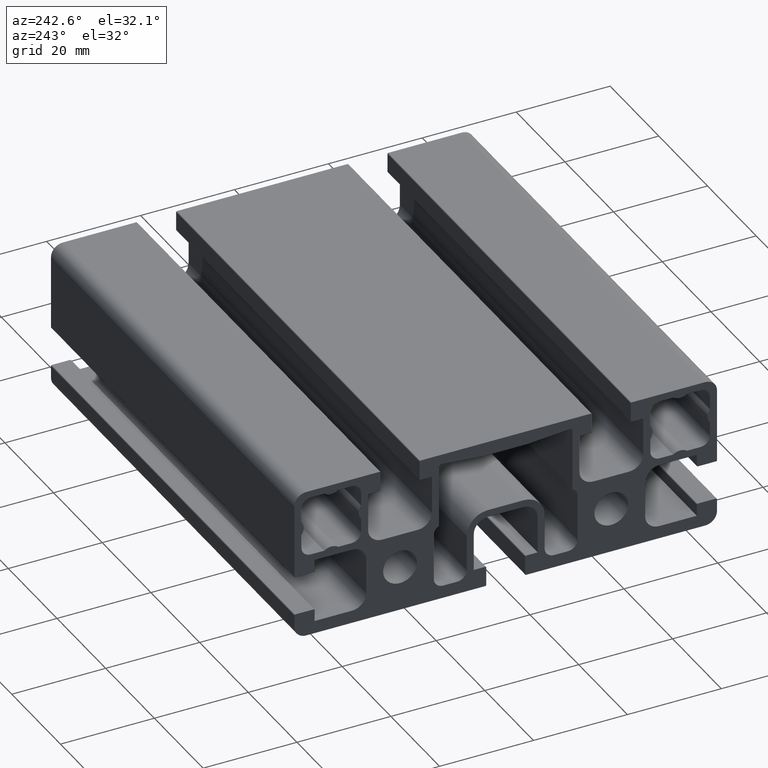
[diagram: clean part render]
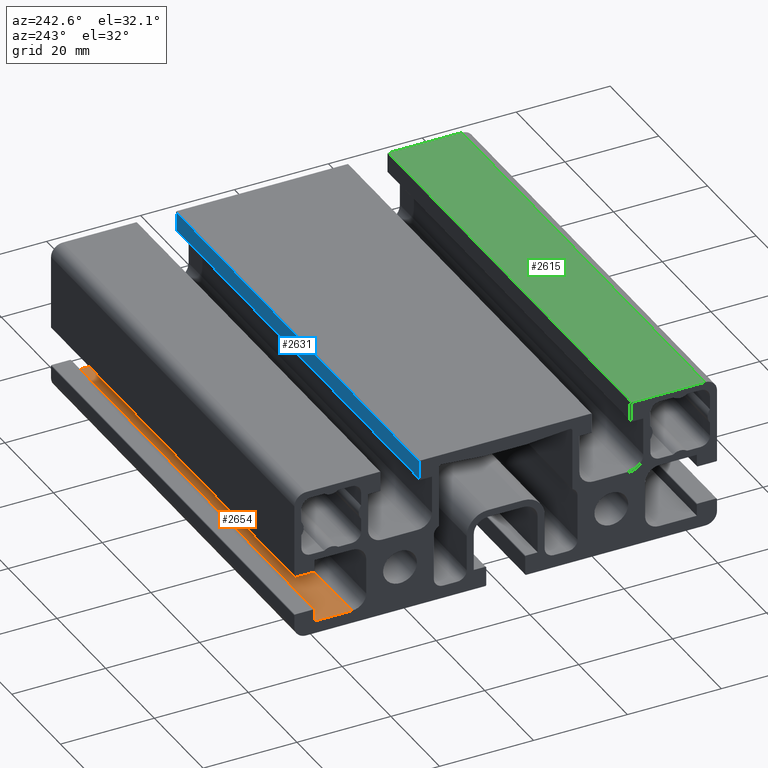
[diagram: same view with three faces highlighted in distinct colors, each labeled with its STEP entity id]
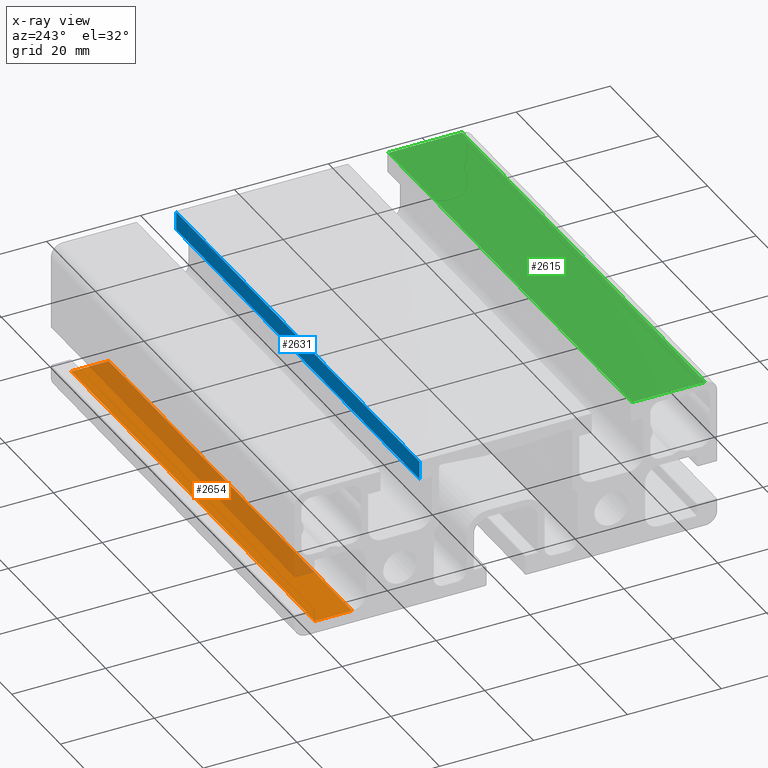
[diagram: x-ray of the same camera — body ghosted, the three highlighted faces saturated]
A machine part, auxiliary view with three faces highlighted in distinct colors.
The next image is the same camera in x-ray (body ghosted, the three faces saturated) — at least one of them is partly hidden behind the body in this view.
Their STEP definitions:

[orange] entity #2654 — the highlighted planar face has unit normal (0, -0, 1).
#75=PLANE('',#2920);
#195=FACE_OUTER_BOUND('',#334,.T.);
#334=EDGE_LOOP('',(#2224,#2225,#2226,#2227));
#629=LINE('',#4179,#899);
#716=LINE('',#4420,#986);
#717=LINE('',#4423,#987);
#718=LINE('',#4424,#988);
#899=VECTOR('',#3366,10.);
#986=VECTOR('',#3609,10.);
#987=VECTOR('',#3612,10.);
#988=VECTOR('',#3613,10.);
#1193=VERTEX_POINT('',#4176);
#1194=VERTEX_POINT('',#4178);
#1270=VERTEX_POINT('',#4418);
#1271=VERTEX_POINT('',#4422);
#1511=EDGE_CURVE('',#1193,#1194,#629,.T.);
#1632=EDGE_CURVE('',#1270,#1193,#716,.T.);
#1633=EDGE_CURVE('',#1271,#1270,#717,.T.);
#1634=EDGE_CURVE('',#1271,#1194,#718,.T.);
#2224=ORIENTED_EDGE('',*,*,#1632,.F.);
#2225=ORIENTED_EDGE('',*,*,#1633,.F.);
#2226=ORIENTED_EDGE('',*,*,#1634,.T.);
#2227=ORIENTED_EDGE('',*,*,#1511,.F.);
#2654=ADVANCED_FACE('',(#195),#75,.T.);
#2920=AXIS2_PLACEMENT_3D('',#4421,#3610,#3611);
#3366=DIRECTION('',(0.,1.,1.38777878078144E-15));
#3609=DIRECTION('',(-1.,0.,0.));
#3610=DIRECTION('center_axis',(0.,-1.38777878078144E-15,1.));
#3611=DIRECTION('ref_axis',(0.,-1.,-1.38777878078144E-15));
#3612=DIRECTION('',(0.,-1.,-1.38777878078144E-15));
#3613=DIRECTION('',(-1.,0.,0.));
#4176=CARTESIAN_POINT('',(-50.,32.7,-13.3));
#4178=CARTESIAN_POINT('',(-50.,40.7,-13.3));
#4179=CARTESIAN_POINT('',(-50.,32.7,-13.3));
#4418=CARTESIAN_POINT('',(50.,32.7,-13.3));
#4420=CARTESIAN_POINT('',(0.,32.7,-13.3));
#4421=CARTESIAN_POINT('Origin',(0.,40.7,-13.3));
#4422=CARTESIAN_POINT('',(50.,40.7,-13.3));
#4423=CARTESIAN_POINT('',(50.,32.7,-13.3));
#4424=CARTESIAN_POINT('',(0.,40.7,-13.3));

[blue] entity #2631 — the highlighted planar face has unit normal (0, 1, 0).
#62=PLANE('',#2887);
#172=FACE_OUTER_BOUND('',#311,.T.);
#311=EDGE_LOOP('',(#2132,#2133,#2134,#2135));
#616=LINE('',#4133,#886);
#680=LINE('',#4328,#950);
#681=LINE('',#4331,#951);
#682=LINE('',#4332,#952);
#886=VECTOR('',#3333,10.);
#950=VECTOR('',#3507,10.);
#951=VECTOR('',#3510,10.);
#952=VECTOR('',#3511,10.);
#1170=VERTEX_POINT('',#4130);
#1171=VERTEX_POINT('',#4132);
#1247=VERTEX_POINT('',#4326);
#1248=VERTEX_POINT('',#4330);
#1488=EDGE_CURVE('',#1170,#1171,#616,.T.);
#1586=EDGE_CURVE('',#1247,#1170,#680,.T.);
#1587=EDGE_CURVE('',#1248,#1247,#681,.T.);
#1588=EDGE_CURVE('',#1248,#1171,#682,.T.);
#2132=ORIENTED_EDGE('',*,*,#1586,.F.);
#2133=ORIENTED_EDGE('',*,*,#1587,.F.);
#2134=ORIENTED_EDGE('',*,*,#1588,.T.);
#2135=ORIENTED_EDGE('',*,*,#1488,.F.);
#2631=ADVANCED_FACE('',(#172),#62,.T.);
#2887=AXIS2_PLACEMENT_3D('',#4329,#3508,#3509);
#3333=DIRECTION('',(0.,0.,-1.));
#3507=DIRECTION('',(-1.,0.,0.));
#3508=DIRECTION('center_axis',(0.,1.,0.));
#3509=DIRECTION('ref_axis',(0.,0.,1.));
#3510=DIRECTION('',(0.,0.,1.));
#3511=DIRECTION('',(-1.,0.,0.));
#4130=CARTESIAN_POINT('',(-50.,18.35,15.8));
#4132=CARTESIAN_POINT('',(-50.,18.35,11.9));
#4133=CARTESIAN_POINT('',(-50.,18.35,15.8));
#4326=CARTESIAN_POINT('',(50.,18.35,15.8));
#4328=CARTESIAN_POINT('',(0.,18.35,15.8));
#4329=CARTESIAN_POINT('Origin',(0.,18.35,11.9));
#4330=CARTESIAN_POINT('',(50.,18.35,11.9));
#4331=CARTESIAN_POINT('',(50.,18.35,15.8));
#4332=CARTESIAN_POINT('',(0.,18.35,11.9));

[green] entity #2615 — the highlighted planar face has unit normal (0, 0, 1).
#53=PLANE('',#2864);
#156=FACE_OUTER_BOUND('',#295,.T.);
#295=EDGE_LOOP('',(#2068,#2069,#2070,#2071));
#607=LINE('',#4101,#877);
#655=LINE('',#4264,#925);
#656=LINE('',#4267,#926);
#657=LINE('',#4268,#927);
#877=VECTOR('',#3310,10.);
#925=VECTOR('',#3436,10.);
#926=VECTOR('',#3439,10.);
#927=VECTOR('',#3440,10.);
#1154=VERTEX_POINT('',#4098);
#1155=VERTEX_POINT('',#4100);
#1231=VERTEX_POINT('',#4262);
#1232=VERTEX_POINT('',#4266);
#1472=EDGE_CURVE('',#1154,#1155,#607,.T.);
#1554=EDGE_CURVE('',#1231,#1154,#655,.T.);
#1555=EDGE_CURVE('',#1232,#1231,#656,.T.);
#1556=EDGE_CURVE('',#1232,#1155,#657,.T.);
#2068=ORIENTED_EDGE('',*,*,#1554,.F.);
#2069=ORIENTED_EDGE('',*,*,#1555,.F.);
#2070=ORIENTED_EDGE('',*,*,#1556,.T.);
#2071=ORIENTED_EDGE('',*,*,#1472,.F.);
#2615=ADVANCED_FACE('',(#156),#53,.T.);
#2864=AXIS2_PLACEMENT_3D('',#4265,#3437,#3438);
#3310=DIRECTION('',(0.,1.,-1.41881536693311E-16));
#3436=DIRECTION('',(-1.,0.,0.));
#3437=DIRECTION('center_axis',(0.,1.41881536693311E-16,1.));
#3438=DIRECTION('ref_axis',(0.,-1.,1.41881536693311E-16));
#3439=DIRECTION('',(0.,-1.,1.41881536693311E-16));
#3440=DIRECTION('',(-1.,0.,0.));
#4098=CARTESIAN_POINT('',(-50.,-42.5,16.));
#4100=CARTESIAN_POINT('',(-50.,-26.85,16.));
#4101=CARTESIAN_POINT('',(-50.,-42.5,16.));
#4262=CARTESIAN_POINT('',(50.,-42.5,16.));
#4264=CARTESIAN_POINT('',(0.,-42.5,16.));
#4265=CARTESIAN_POINT('Origin',(0.,-26.85,16.));
#4266=CARTESIAN_POINT('',(50.,-26.85,16.));
#4267=CARTESIAN_POINT('',(50.,-42.5,16.));
#4268=CARTESIAN_POINT('',(0.,-26.85,16.));